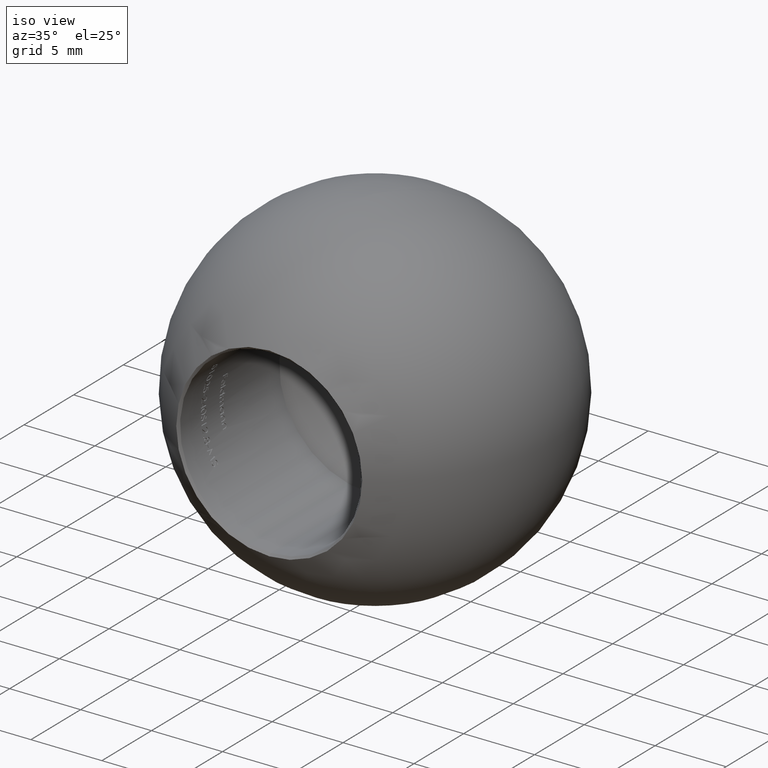
[diagram: clean part render]
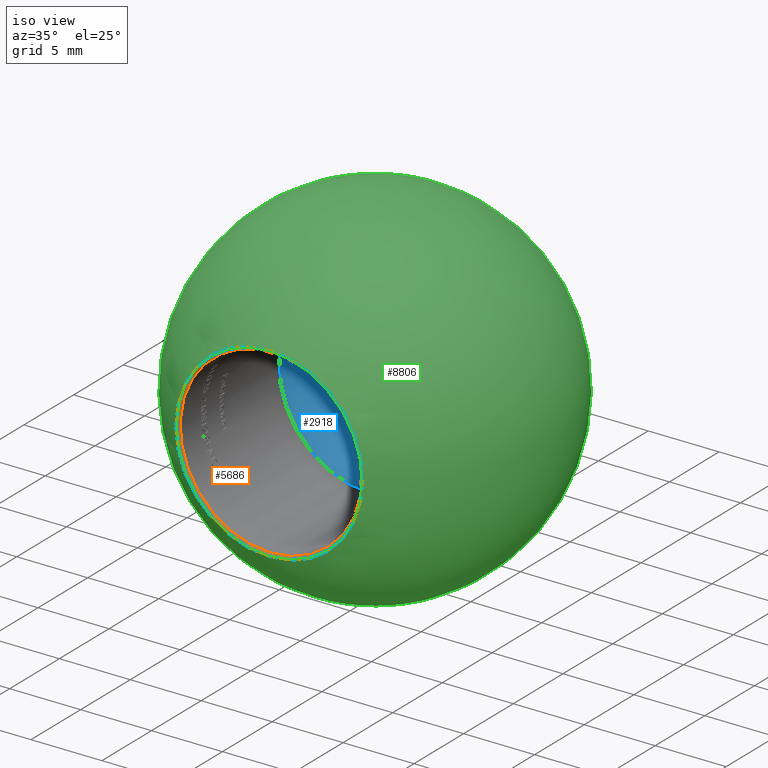
[diagram: same view with three faces highlighted in distinct colors, each labeled with its STEP entity id]
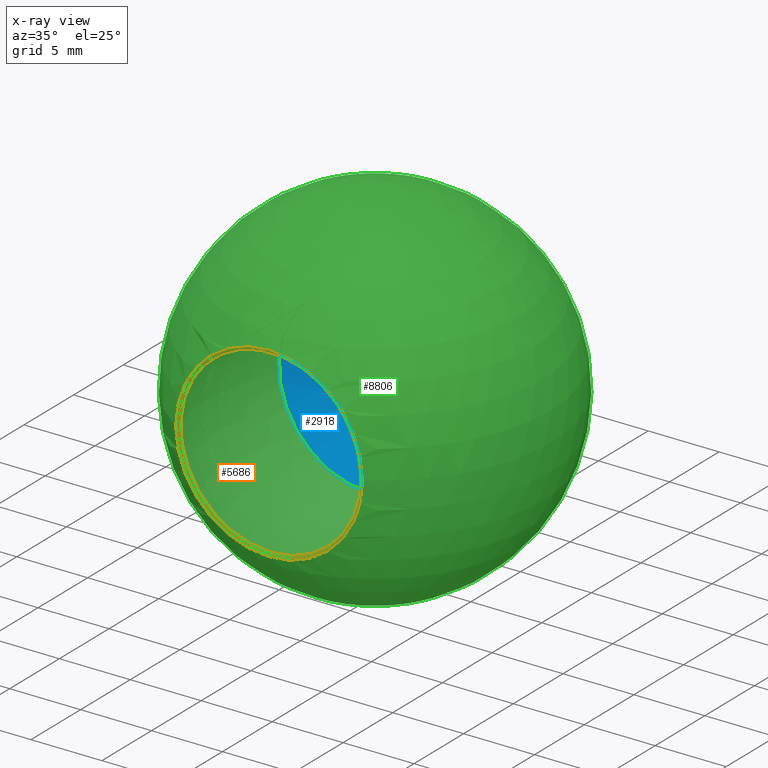
[diagram: x-ray of the same camera — body ghosted, the three highlighted faces saturated]
A machine part, iso view with three faces highlighted in distinct colors.
The next image is the same camera in x-ray (body ghosted, the three faces saturated) — at least one of them is partly hidden behind the body in this view.
Their STEP definitions:

[orange] entity #5686 — the highlighted conical surface has half-angle 45 deg.
#664 = FACE_OUTER_BOUND ( 'NONE', #5737, .T. ) ;
#944 = AXIS2_PLACEMENT_3D ( 'NONE', #1294, #5283, #10293 ) ;
#1268 = CARTESIAN_POINT ( 'NONE',  ( 5.315566646508728300E-032, 1.857012040528096300, 0.0000000000000000000 ) ) ;
#1294 = CARTESIAN_POINT ( 'NONE',  ( 0.0000000000000000000, 2.012681899096037800, 0.0000000000000000000 ) ) ;
#1728 = EDGE_CURVE ( 'NONE', #16285, #16285, #7282, .T. ) ;
#1761 = AXIS2_PLACEMENT_3D ( 'NONE', #15285, #15173, #6327 ) ;
#1900 = VERTEX_POINT ( 'NONE', #15946 ) ;
#3064 = CONICAL_SURFACE ( 'NONE', #944, 6.399999999999998600, 0.7853981633974427300 ) ;
#4166 = ORIENTED_EDGE ( 'NONE', *, *, #14964, .F. ) ;
#4913 = DIRECTION ( 'NONE',  ( -0.0000000000000000000, 1.000000000000000000, -0.0000000000000000000 ) ) ;
#5242 = FACE_BOUND ( 'NONE', #13701, .T. ) ;
#5283 = DIRECTION ( 'NONE',  ( 0.0000000000000000000, -1.000000000000000000, 0.0000000000000000000 ) ) ;
#5686 = ADVANCED_FACE ( 'NONE', ( #664, #5242 ), #3064, .F. ) ;
#5737 = EDGE_LOOP ( 'NONE', ( #6565 ) ) ;
#6327 = DIRECTION ( 'NONE',  ( 0.0000000000000000000, 0.0000000000000000000, -1.000000000000000000 ) ) ;
#6565 = ORIENTED_EDGE ( 'NONE', *, *, #1728, .F. ) ;
#7282 = CIRCLE ( 'NONE', #8938, 6.555669858567936700 ) ;
#8097 = CIRCLE ( 'NONE', #1761, 6.399999999999998600 ) ;
#8938 = AXIS2_PLACEMENT_3D ( 'NONE', #1268, #4913, #13936 ) ;
#10293 = DIRECTION ( 'NONE',  ( 0.0000000000000000000, 0.0000000000000000000, -1.000000000000000000 ) ) ;
#10794 = CARTESIAN_POINT ( 'NONE',  ( 5.315566646508728300E-032, 1.857012040528096300, 6.555669858567936700 ) ) ;
#13701 = EDGE_LOOP ( 'NONE', ( #4166 ) ) ;
#13936 = DIRECTION ( 'NONE',  ( 0.0000000000000000000, 0.0000000000000000000, 1.000000000000000000 ) ) ;
#14964 = EDGE_CURVE ( 'NONE', #1900, #1900, #8097, .T. ) ;
#15173 = DIRECTION ( 'NONE',  ( 0.0000000000000000000, -1.000000000000000000, 0.0000000000000000000 ) ) ;
#15285 = CARTESIAN_POINT ( 'NONE',  ( 0.0000000000000000000, 2.012681899096037800, 0.0000000000000000000 ) ) ;
#15946 = CARTESIAN_POINT ( 'NONE',  ( 0.0000000000000000000, 2.012681899096037800, -6.399999999999998600 ) ) ;
#16285 = VERTEX_POINT ( 'NONE', #10794 ) ;

[blue] entity #2918 — the highlighted conical surface has half-angle 59 deg.
#2570 = EDGE_CURVE ( 'NONE', #13332, #13332, #4690, .T. ) ;
#2918 = ADVANCED_FACE ( 'NONE', ( #9815 ), #12782, .F. ) ;
#4368 = CARTESIAN_POINT ( 'NONE',  ( 0.0000000000000000000, 12.00000000000000000, 0.0000000000000000000 ) ) ;
#4568 = CARTESIAN_POINT ( 'NONE',  ( 0.0000000000000000000, 12.00000000000000000, -6.399999999999997700 ) ) ;
#4690 = CIRCLE ( 'NONE', #9987, 6.399999999999997700 ) ;
#5504 = CARTESIAN_POINT ( 'NONE',  ( 0.0000000000000000000, 12.00000000000000000, 0.0000000000000000000 ) ) ;
#5520 = ORIENTED_EDGE ( 'NONE', *, *, #2570, .T. ) ;
#7884 = DIRECTION ( 'NONE',  ( 0.0000000000000000000, 0.0000000000000000000, -1.000000000000000000 ) ) ;
#9815 = FACE_OUTER_BOUND ( 'NONE', #11040, .T. ) ;
#9987 = AXIS2_PLACEMENT_3D ( 'NONE', #5504, #13030, #7884 ) ;
#10804 = DIRECTION ( 'NONE',  ( 0.0000000000000000000, 0.0000000000000000000, -1.000000000000000000 ) ) ;
#11040 = EDGE_LOOP ( 'NONE', ( #5520 ) ) ;
#11686 = AXIS2_PLACEMENT_3D ( 'NONE', #4368, #13220, #10804 ) ;
#12782 = CONICAL_SURFACE ( 'NONE', #11686, 6.399999999999997700, 1.029744258676653900 ) ;
#13030 = DIRECTION ( 'NONE',  ( -0.0000000000000000000, -1.000000000000000000, -0.0000000000000000000 ) ) ;
#13220 = DIRECTION ( 'NONE',  ( -0.0000000000000000000, -1.000000000000000000, -0.0000000000000000000 ) ) ;
#13332 = VERTEX_POINT ( 'NONE', #4568 ) ;

[green] entity #8806 — the highlighted spherical surface has radius 12.5 mm.
#814 = FACE_OUTER_BOUND ( 'NONE', #2299, .T. ) ;
#1268 = CARTESIAN_POINT ( 'NONE',  ( 5.315566646508728300E-032, 1.857012040528096300, 0.0000000000000000000 ) ) ;
#1728 = EDGE_CURVE ( 'NONE', #16285, #16285, #7282, .T. ) ;
#2299 = EDGE_LOOP ( 'NONE', ( #14214 ) ) ;
#4913 = DIRECTION ( 'NONE',  ( -0.0000000000000000000, 1.000000000000000000, -0.0000000000000000000 ) ) ;
#7282 = CIRCLE ( 'NONE', #8938, 6.555669858567936700 ) ;
#7795 = AXIS2_PLACEMENT_3D ( 'NONE', #14816, #16134, #9768 ) ;
#8806 = ADVANCED_FACE ( 'NONE', ( #814 ), #11073, .T. ) ;
#8938 = AXIS2_PLACEMENT_3D ( 'NONE', #1268, #4913, #13936 ) ;
#9768 = DIRECTION ( 'NONE',  ( -1.000000000000000000, -1.387778780781445700E-016, 0.0000000000000000000 ) ) ;
#10794 = CARTESIAN_POINT ( 'NONE',  ( 5.315566646508728300E-032, 1.857012040528096300, 6.555669858567936700 ) ) ;
#11073 = SPHERICAL_SURFACE ( 'NONE', #7795, 12.50000000000000000 ) ;
#13936 = DIRECTION ( 'NONE',  ( 0.0000000000000000000, 0.0000000000000000000, 1.000000000000000000 ) ) ;
#14214 = ORIENTED_EDGE ( 'NONE', *, *, #1728, .T. ) ;
#14816 = CARTESIAN_POINT ( 'NONE',  ( 5.315566646508728300E-032, 12.50000000000000000, 0.0000000000000000000 ) ) ;
#16134 = DIRECTION ( 'NONE',  ( -0.0000000000000000000, 0.0000000000000000000, -1.000000000000000000 ) ) ;
#16285 = VERTEX_POINT ( 'NONE', #10794 ) ;